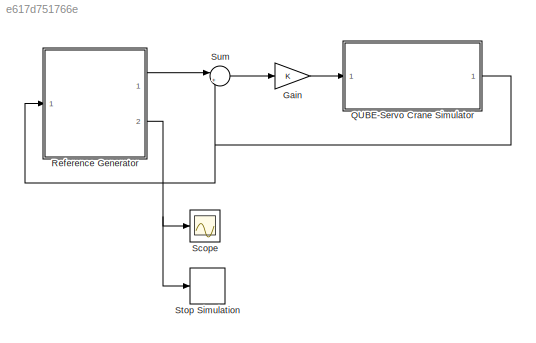
MODEL slx_e617d751766e
KIND model
CONFIG AbsTol = 1e-9
CONFIG FixedStep = 0.002
CONFIG InitFcn = Dr = 0.0015; %[Nms/rad]\nDp = 0.0005; %[Nms/rad]\n\nmr = 0.095; %[kg] arm mass\nmp = 0.024; %[kg] pendulum mass\nLr = 0.085; %[m]\nLp = 0.129; %[m]\n\nJr = mr*Lr^2/12;\nJp = (2.53+1.33)/2*1e-4;\n\nKt = 0.042; %[Nm/A]\nRm = 8.4; %[Ohm]\n\n% Km = 0.042; %[Vs/rad] not used (back emf term), low speed means this is negligible.\n\n\nJT = Jp*mp*Lr^2 + Jr*Jp + Jr*mp*Lp^2/4;\n\ng = 9.81; %[m/s^2] gravity\n%% state space model...<+1ch>
CONFIG MaxStep = auto
CONFIG MinStep = auto
CONFIG RelTol = 1e-9
CONFIG SampleTimeConstraint = Unconstrained
CONFIG Solver = FixedStepAuto
CONFIG SolverMode = Auto
CONFIG SolverName = FixedStepAuto
CONFIG StartTime = 0.0
CONFIG StopTime = 30
BLOCK [Gain] Gain
  Gain = K
  Multiplication = Matrix(K*u)
  OutDataTypeStr = Inherit: Inherit via internal rule
  ParamDataTypeStr = Inherit: Inherit via internal rule
  SaturateOnIntegerOverflow = off
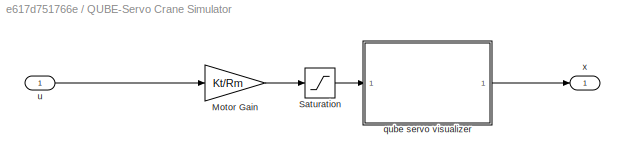
BLOCK [SubSystem] QUBE-Servo Crane Simulator
  Permissions = ReadOnly
  Ports = [1, 1]
  RequestExecContextInheritance = off
  Variant = off
BLOCK [Gain] QUBE-Servo Crane Simulator/Motor Gain
  Gain = Kt/Rm
  OutDataTypeStr = Inherit: Inherit via internal rule
  ParamDataTypeStr = Inherit: Inherit via internal rule
  SaturateOnIntegerOverflow = off
BLOCK [Saturate] QUBE-Servo Crane Simulator/Saturation
  InputPortMap = u0
  Ports = [1, 1]
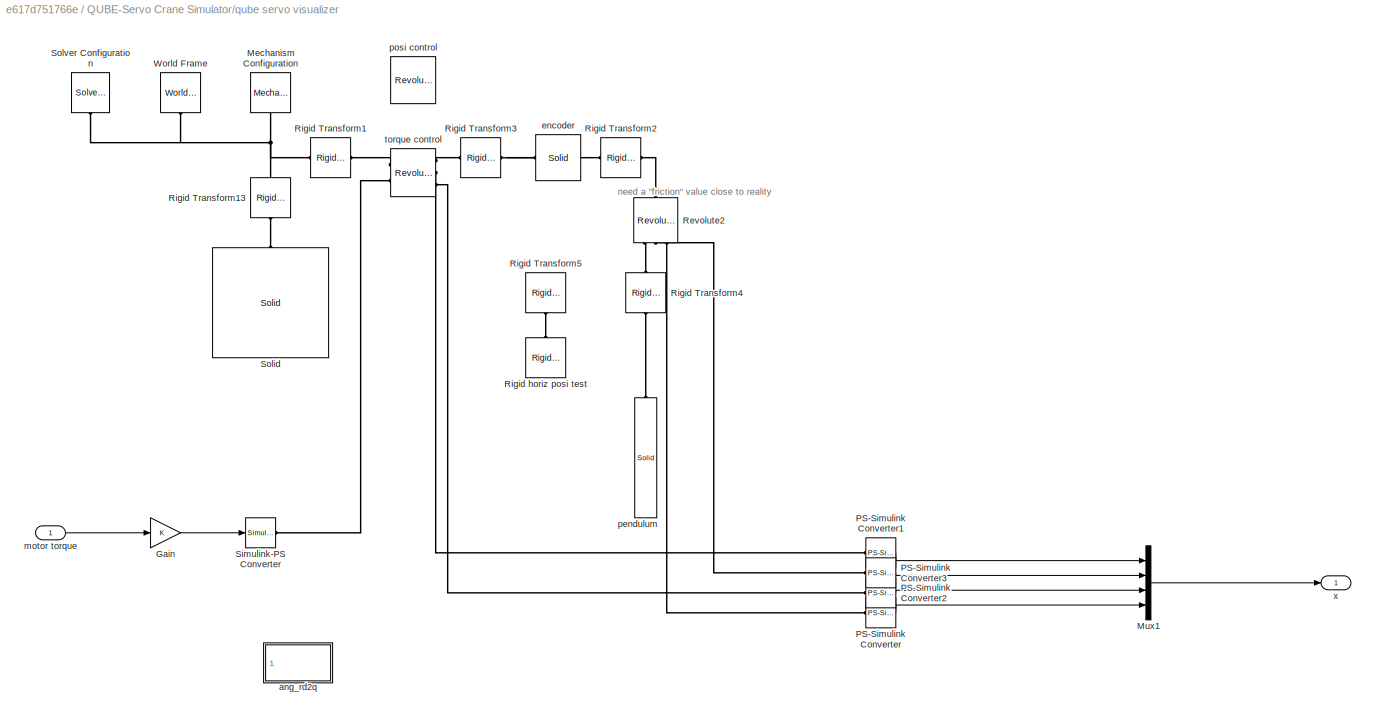
BLOCK [SubSystem] QUBE-Servo Crane Simulator/qube servo visualizer
  Ports = [1, 1]
  RequestExecContextInheritance = off
  Variant = off
BLOCK [Gain] QUBE-Servo Crane Simulator/qube servo visualizer/Gain
  OutDataTypeStr = Inherit: Inherit via internal rule
  ParamDataTypeStr = Inherit: Inherit via internal rule
  SaturateOnIntegerOverflow = off
BLOCK [Reference] QUBE-Servo Crane Simulator/qube servo visualizer/Mechanism Configuration  REF=sm_lib/Utilities/Mechanism
Configuration
  Ports = [0, 0, 0, 0, 0, 0, 1]
  SourceBlock = sm_lib/Utilities/Mechanism\nConfiguration
  SourceType = Mechanism\nConfiguration
BLOCK [Mux] QUBE-Servo Crane Simulator/qube servo visualizer/Mux1
  DisplayOption = bar
  Ports = [4, 1]
BLOCK [Reference] QUBE-Servo Crane Simulator/qube servo visualizer/PS-Simulink Converter  REF=nesl_utility/PS-Simulink
Converter
  Ports = [0, 1, 0, 0, 0, 1]
  SourceBlock = nesl_utility/PS-Simulink\nConverter
  SourceType = PS-Simulink\nConverter
BLOCK [Reference] QUBE-Servo Crane Simulator/qube servo visualizer/PS-Simulink Converter1  REF=nesl_utility/PS-Simulink
Converter
  Ports = [0, 1, 0, 0, 0, 1]
  SourceBlock = nesl_utility/PS-Simulink\nConverter
  SourceType = PS-Simulink\nConverter
BLOCK [Reference] QUBE-Servo Crane Simulator/qube servo visualizer/PS-Simulink Converter2  REF=nesl_utility/PS-Simulink
Converter
  Ports = [0, 1, 0, 0, 0, 1]
  SourceBlock = nesl_utility/PS-Simulink\nConverter
  SourceType = PS-Simulink\nConverter
BLOCK [Reference] QUBE-Servo Crane Simulator/qube servo visualizer/PS-Simulink Converter3  REF=nesl_utility/PS-Simulink
Converter
  Ports = [0, 1, 0, 0, 0, 1]
  SourceBlock = nesl_utility/PS-Simulink\nConverter
  SourceType = PS-Simulink\nConverter
BLOCK [Reference] QUBE-Servo Crane Simulator/qube servo visualizer/Revolute2  REF=sm_lib/Joints/Revolute Joint
  Ports = [0, 0, 0, 0, 0, 1, 3]
  SourceBlock = sm_lib/Joints/Revolute Joint
  SourceType = Revolute Joint
BLOCK [Reference] QUBE-Servo Crane Simulator/qube servo visualizer/Rigid Transform1  REF=sm_lib/Frames and
Transforms/Rigid
Transform
  Ports = [0, 0, 0, 0, 0, 1, 1]
  SourceBlock = sm_lib/Frames and\nTransforms/Rigid\nTransform
  SourceType = Rigid\nTransform
BLOCK [Reference] QUBE-Servo Crane Simulator/qube servo visualizer/Rigid Transform13  REF=sm_lib/Frames and
Transforms/Rigid
Transform
  Ports = [0, 0, 0, 0, 0, 1, 1]
  SourceBlock = sm_lib/Frames and\nTransforms/Rigid\nTransform
  SourceType = Rigid\nTransform
BLOCK [Reference] QUBE-Servo Crane Simulator/qube servo visualizer/Rigid Transform2  REF=sm_lib/Frames and
Transforms/Rigid
Transform
  Ports = [0, 0, 0, 0, 0, 1, 1]
  SourceBlock = sm_lib/Frames and\nTransforms/Rigid\nTransform
  SourceType = Rigid\nTransform
BLOCK [Reference] QUBE-Servo Crane Simulator/qube servo visualizer/Rigid Transform3  REF=sm_lib/Frames and
Transforms/Rigid
Transform
  Ports = [0, 0, 0, 0, 0, 1, 1]
  SourceBlock = sm_lib/Frames and\nTransforms/Rigid\nTransform
  SourceType = Rigid\nTransform
BLOCK [Reference] QUBE-Servo Crane Simulator/qube servo visualizer/Rigid Transform4  REF=sm_lib/Frames and
Transforms/Rigid
Transform
  Ports = [0, 0, 0, 0, 0, 1, 1]
  SourceBlock = sm_lib/Frames and\nTransforms/Rigid\nTransform
  SourceType = Rigid\nTransform
BLOCK [Reference] QUBE-Servo Crane Simulator/qube servo visualizer/Rigid Transform5  REF=sm_lib/Frames and
Transforms/Rigid
Transform
  Commented = on
  Ports = [0, 0, 0, 0, 0, 1, 1]
  SourceBlock = sm_lib/Frames and\nTransforms/Rigid\nTransform
  SourceType = Rigid\nTransform
BLOCK [Reference] QUBE-Servo Crane Simulator/qube servo visualizer/Rigid horiz posi test  REF=sm_lib/Frames and
Transforms/Rigid
Transform
  Commented = on
  Ports = [0, 0, 0, 0, 0, 1, 1]
  SourceBlock = sm_lib/Frames and\nTransforms/Rigid\nTransform
  SourceType = Rigid\nTransform
BLOCK [Reference] QUBE-Servo Crane Simulator/qube servo visualizer/Simulink-PS Converter  REF=nesl_utility/Simulink-PS
Converter
  Ports = [1, 0, 0, 0, 0, 0, 1]
  SourceBlock = nesl_utility/Simulink-PS\nConverter
  SourceType = Simulink-PS\nConverter
BLOCK [Reference] QUBE-Servo Crane Simulator/qube servo visualizer/Solid  REF=sm_lib/Body Elements/Solid
  Ports = [0, 0, 0, 0, 0, 0, 1]
  SourceBlock = sm_lib/Body Elements/Solid
  SourceType = Solid
BLOCK [Reference] QUBE-Servo Crane Simulator/qube servo visualizer/Solver Configuration  REF=nesl_utility/Solver
Configuration
  Ports = [0, 0, 0, 0, 0, 0, 1]
  SourceBlock = nesl_utility/Solver\nConfiguration
  SourceType = Solver\nConfiguration
BLOCK [Reference] QUBE-Servo Crane Simulator/qube servo visualizer/World Frame  REF=sm_lib/Frames and
Transforms/World Frame
  Ports = [0, 0, 0, 0, 0, 0, 1]
  SourceBlock = sm_lib/Frames and\nTransforms/World Frame
  SourceType = World Frame
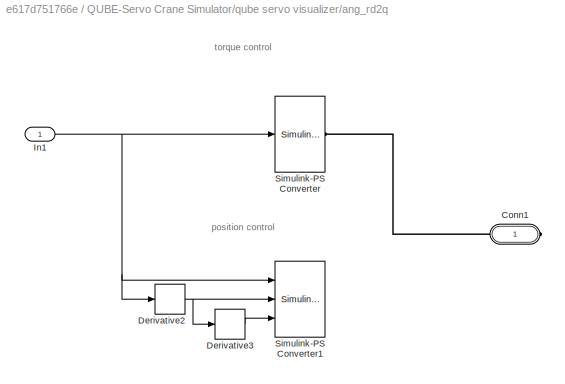
BLOCK [SubSystem] QUBE-Servo Crane Simulator/qube servo visualizer/ang_rd2q 
  Commented = on
  Ports = [1, 0, 0, 0, 0, 0, 1]
  RequestExecContextInheritance = off
  Variant = off
BLOCK [PMIOPort] QUBE-Servo Crane Simulator/qube servo visualizer/ang_rd2q /Conn1
  Port = 1
  Side = Right
BLOCK [Derivative] QUBE-Servo Crane Simulator/qube servo visualizer/ang_rd2q /Derivative2
  Commented = on
BLOCK [Derivative] QUBE-Servo Crane Simulator/qube servo visualizer/ang_rd2q /Derivative3
  Commented = on
BLOCK [Inport] QUBE-Servo Crane Simulator/qube servo visualizer/ang_rd2q /In1
  IconDisplay = Port number
BLOCK [Reference] QUBE-Servo Crane Simulator/qube servo visualizer/ang_rd2q /Simulink-PS Converter  REF=nesl_utility/Simulink-PS
Converter
  Ports = [1, 0, 0, 0, 0, 0, 1]
  SourceBlock = nesl_utility/Simulink-PS\nConverter
  SourceType = Simulink-PS\nConverter
BLOCK [Reference] QUBE-Servo Crane Simulator/qube servo visualizer/ang_rd2q /Simulink-PS Converter1  REF=nesl_utility/Simulink-PS
Converter
  Commented = on
  Ports = [3, 0, 0, 0, 0, 0, 1]
  SourceBlock = nesl_utility/Simulink-PS\nConverter
  SourceType = Simulink-PS\nConverter
BLOCK [Reference] QUBE-Servo Crane Simulator/qube servo visualizer/encoder  REF=sm_lib/Body Elements/Solid
  Ports = [0, 0, 0, 0, 0, 0, 1]
  SourceBlock = sm_lib/Body Elements/Solid
  SourceType = Solid
BLOCK [Inport] QUBE-Servo Crane Simulator/qube servo visualizer/motor torque
  IconDisplay = Port number
BLOCK [Reference] QUBE-Servo Crane Simulator/qube servo visualizer/pendulum  REF=sm_lib/Body Elements/Solid
  Ports = [0, 0, 0, 0, 0, 0, 1]
  SourceBlock = sm_lib/Body Elements/Solid
  SourceType = Solid
BLOCK [Reference] QUBE-Servo Crane Simulator/qube servo visualizer/posi control  REF=sm_lib/Joints/Revolute Joint
  Commented = on
  Ports = [0, 0, 0, 0, 0, 2, 2]
  SourceBlock = sm_lib/Joints/Revolute Joint
  SourceType = Revolute Joint
BLOCK [Reference] QUBE-Servo Crane Simulator/qube servo visualizer/torque control  REF=sm_lib/Joints/Revolute Joint
  Ports = [0, 0, 0, 0, 0, 2, 3]
  SourceBlock = sm_lib/Joints/Revolute Joint
  SourceType = Revolute Joint
BLOCK [Outport] QUBE-Servo Crane Simulator/qube servo visualizer/x
  IconDisplay = Port number
BLOCK [Inport] QUBE-Servo Crane Simulator/u
  IconDisplay = Port number
BLOCK [Outport] QUBE-Servo Crane Simulator/x
  IconDisplay = Port number
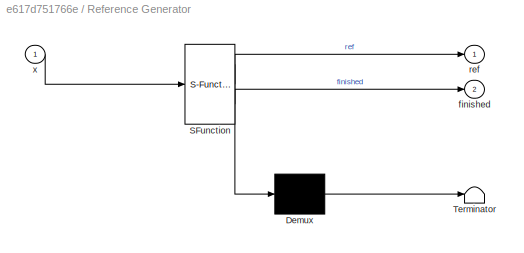
BLOCK [SubSystem] Reference Generator
  ErrorFcn = Stateflow.Translate.translate
  PermitHierarchicalResolution = ExplicitOnly
  Ports = [1, 2]
  RequestExecContextInheritance = off
  SFBlockType = MATLAB Function
  TreatAsAtomicUnit = on
  Variant = off
BLOCK [Demux] Reference Generator/ Demux 
  Outputs = 1
  Ports = [1, 1]
BLOCK [S-Function] Reference Generator/ SFunction 
  EnableBusSupport = on
  FunctionName = sf_sfun
  PortCounts = [1 3]
  Ports = [1, 3]
  SFunctionDeploymentMode = off
  Tag = Stateflow S-Function Lab3Simulation 2
BLOCK [Terminator] Reference Generator/ Terminator 
BLOCK [Outport] Reference Generator/finished
  IconDisplay = Port number
  Port = 2
BLOCK [Outport] Reference Generator/ref
  IconDisplay = Port number
BLOCK [Inport] Reference Generator/x
  IconDisplay = Port number
BLOCK [Scope] Scope
  Ports = [1]
  ScopeSpecificationString = Simulink.scopes.TimeScopeBlockCfg('CurrentConfiguration', extmgr.ConfigurationSet(extmgr.Configuration('Core','General UI',true,'FigureColor',[0.156862745098039 0.156862745098039 0.156862745098039]),extmgr.Configuration('Core','Source UI',true),extmgr.Configuration('Sources','WiredSimulink',true,'DataLoggingLimitDataPoints',true,'DataLoggingSaveFormat','Array','DataLoggingDecimation','1','DataLogg...<+2782ch>
BLOCK [Stop] Stop Simulation
BLOCK [Sum] Sum
  IconShape = round
  InputSameDT = off
  Inputs = |+-
  OutDataTypeStr = Inherit: Inherit via internal rule
  Ports = [2, 1]
  SaturateOnIntegerOverflow = off
ANNOTATION QUBE-Servo Crane Simulator/qube servo visualizer: need a "friction" value close to reality
ANNOTATION QUBE-Servo Crane Simulator/qube servo visualizer/ang_rd2q : position control
ANNOTATION QUBE-Servo Crane Simulator/qube servo visualizer/ang_rd2q : torque control
LINE Gain:1 -> QUBE-Servo Crane Simulator:1
LINE QUBE-Servo Crane Simulator/Motor Gain:1 -> QUBE-Servo Crane Simulator/Saturation:1
LINE QUBE-Servo Crane Simulator/Saturation:1 -> QUBE-Servo Crane Simulator/qube servo visualizer:1
LINE QUBE-Servo Crane Simulator/qube servo visualizer/Gain:1 -> QUBE-Servo Crane Simulator/qube servo visualizer/Simulink-PS Converter:1
LINE QUBE-Servo Crane Simulator/qube servo visualizer/Mux1:1 -> QUBE-Servo Crane Simulator/qube servo visualizer/x:1
LINE QUBE-Servo Crane Simulator/qube servo visualizer/PS-Simulink Converter1:1 -> QUBE-Servo Crane Simulator/qube servo visualizer/Mux1:1
LINE QUBE-Servo Crane Simulator/qube servo visualizer/PS-Simulink Converter2:1 -> QUBE-Servo Crane Simulator/qube servo visualizer/Mux1:3
LINE QUBE-Servo Crane Simulator/qube servo visualizer/PS-Simulink Converter3:1 -> QUBE-Servo Crane Simulator/qube servo visualizer/Mux1:2
LINE QUBE-Servo Crane Simulator/qube servo visualizer/PS-Simulink Converter:1 -> QUBE-Servo Crane Simulator/qube servo visualizer/Mux1:4
NET QUBE-Servo Crane Simulator/qube servo visualizer/ang_rd2q /Derivative2:1 -> QUBE-Servo Crane Simulator/qube servo visualizer/ang_rd2q /Derivative3:1, QUBE-Servo Crane Simulator/qube servo visualizer/ang_rd2q /Simulink-PS Converter1:2
LINE QUBE-Servo Crane Simulator/qube servo visualizer/ang_rd2q /Derivative3:1 -> QUBE-Servo Crane Simulator/qube servo visualizer/ang_rd2q /Simulink-PS Converter1:3
NET QUBE-Servo Crane Simulator/qube servo visualizer/ang_rd2q /In1:1 -> QUBE-Servo Crane Simulator/qube servo visualizer/ang_rd2q /Derivative2:1, QUBE-Servo Crane Simulator/qube servo visualizer/ang_rd2q /Simulink-PS Converter1:1, QUBE-Servo Crane Simulator/qube servo visualizer/ang_rd2q /Simulink-PS Converter:1
LINE QUBE-Servo Crane Simulator/qube servo visualizer/motor torque:1 -> QUBE-Servo Crane Simulator/qube servo visualizer/Gain:1
LINE QUBE-Servo Crane Simulator/qube servo visualizer:1 -> QUBE-Servo Crane Simulator/x:1
LINE QUBE-Servo Crane Simulator/u:1 -> QUBE-Servo Crane Simulator/Motor Gain:1
NET QUBE-Servo Crane Simulator:1 -> Reference Generator:1, Sum:2
LINE Reference Generator:1 -> Sum:1
NET Reference Generator:2 -> Scope:1, Stop Simulation:1
LINE Sum:1 -> Gain:1
PNET net1: QUBE-Servo Crane Simulator/qube servo visualizer/Mechanism Configuration:RConn1 -- QUBE-Servo Crane Simulator/qube servo visualizer/Rigid Transform13:LConn1 -- QUBE-Servo Crane Simulator/qube servo visualizer/Rigid Transform1:LConn1 -- QUBE-Servo Crane Simulator/qube servo visualizer/Solver Configuration:RConn1 -- QUBE-Servo Crane Simulator/qube servo visualizer/World Frame:RConn1
PLINE QUBE-Servo Crane Simulator/qube servo visualizer/PS-Simulink Converter1:LConn1 -- QUBE-Servo Crane Simulator/qube servo visualizer/torque control:RConn2
PLINE QUBE-Servo Crane Simulator/qube servo visualizer/PS-Simulink Converter2:LConn1 -- QUBE-Servo Crane Simulator/qube servo visualizer/torque control:RConn3
PLINE QUBE-Servo Crane Simulator/qube servo visualizer/PS-Simulink Converter3:LConn1 -- QUBE-Servo Crane Simulator/qube servo visualizer/Revolute2:RConn2
PLINE QUBE-Servo Crane Simulator/qube servo visualizer/PS-Simulink Converter:LConn1 -- QUBE-Servo Crane Simulator/qube servo visualizer/Revolute2:RConn3
PLINE QUBE-Servo Crane Simulator/qube servo visualizer/Revolute2:LConn1 -- QUBE-Servo Crane Simulator/qube servo visualizer/Rigid Transform2:RConn1
PLINE QUBE-Servo Crane Simulator/qube servo visualizer/Revolute2:RConn1 -- QUBE-Servo Crane Simulator/qube servo visualizer/Rigid Transform4:LConn1
PLINE QUBE-Servo Crane Simulator/qube servo visualizer/Rigid Transform13:RConn1 -- QUBE-Servo Crane Simulator/qube servo visualizer/Solid:RConn1
PLINE QUBE-Servo Crane Simulator/qube servo visualizer/Rigid Transform1:RConn1 -- QUBE-Servo Crane Simulator/qube servo visualizer/torque control:LConn1
PNET net2: QUBE-Servo Crane Simulator/qube servo visualizer/Rigid Transform2:LConn1 -- QUBE-Servo Crane Simulator/qube servo visualizer/Rigid Transform3:RConn1 -- QUBE-Servo Crane Simulator/qube servo visualizer/encoder:RConn1
PLINE QUBE-Servo Crane Simulator/qube servo visualizer/Rigid Transform3:LConn1 -- QUBE-Servo Crane Simulator/qube servo visualizer/torque control:RConn1
PLINE QUBE-Servo Crane Simulator/qube servo visualizer/Rigid Transform4:RConn1 -- QUBE-Servo Crane Simulator/qube servo visualizer/pendulum:RConn1
PLINE QUBE-Servo Crane Simulator/qube servo visualizer/Rigid Transform5:RConn1 -- QUBE-Servo Crane Simulator/qube servo visualizer/Rigid horiz posi test:LConn1
PLINE QUBE-Servo Crane Simulator/qube servo visualizer/Simulink-PS Converter:RConn1 -- QUBE-Servo Crane Simulator/qube servo visualizer/torque control:LConn2
PLINE QUBE-Servo Crane Simulator/qube servo visualizer/ang_rd2q /Conn1:RConn1 -- QUBE-Servo Crane Simulator/qube servo visualizer/ang_rd2q /Simulink-PS Converter:RConn1
note: NET lines group one-source signal fan-out (src -> all destinations, sorted); 1:1 wires keep LINE; PNET lines group multi-terminal physical nets as a canonical sorted terminal list (undirected conserving connections); 2-terminal nets keep the pairwise PLINE form
CHART Reference Generator states=1 transitions=1
  STATE_LABEL 'eML_blk_kernel()'
  STATE_LABEL "SCRIPT:\nfunction [ref, finished] = REFGEN(x)\n%#codegen\n%% Crane Reference Generator: For AMME3500 Lab 3 (2016)\n% \n% Generates three `waypoints' for the crane's horizontal linkage. When the\n% state is settled close to the reference at close to zero velocity, the\n% next waypoint is given (the change is a step change). When all the waypoints \n% have been reached, then the task is finished.\n%\n% Let q1...<+1155ch>"
